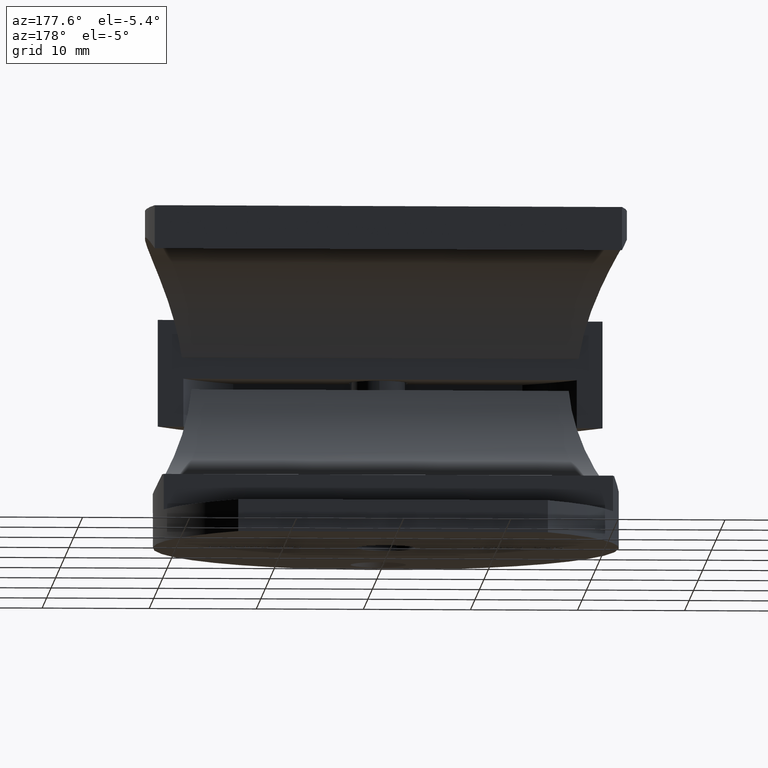
[diagram: clean part render]
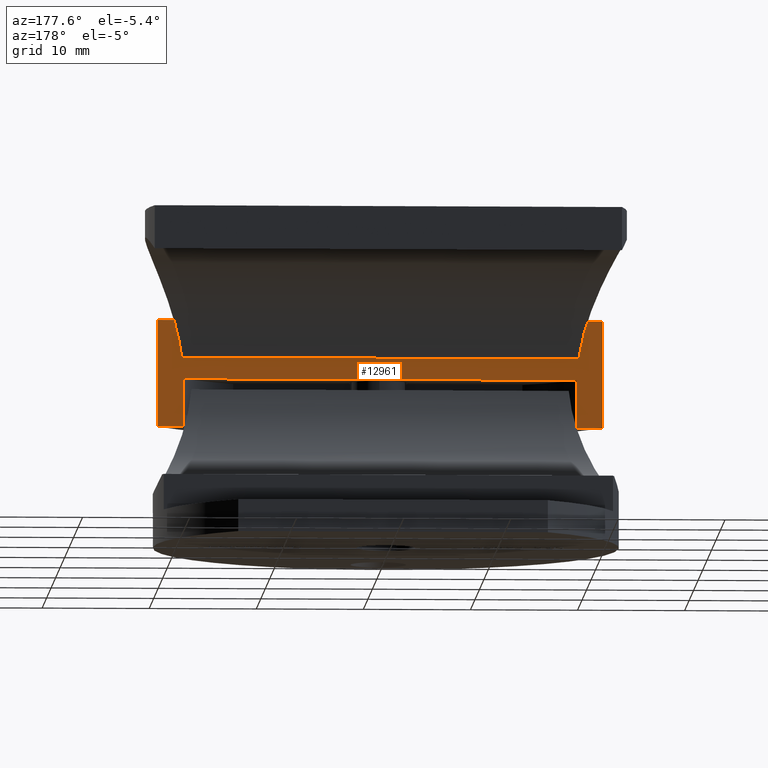
[diagram: same view with one face highlighted and labeled with its STEP entity id]
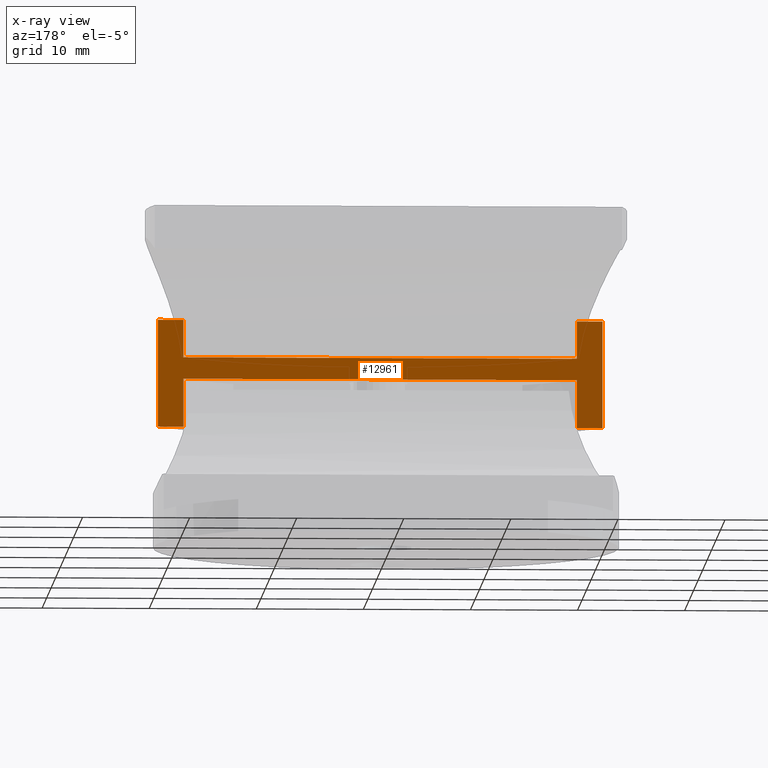
[diagram: x-ray of the same camera — body ghosted, the highlighted face saturated]
A machine part, auxiliary view. The second image highlights one B-rep face of the part: STEP entity #12961.
The next image is the same camera in x-ray: the body ghosted, the highlighted face saturated — about 0% of this face is hidden behind the body in this view.
In plain terms, the highlighted planar face has unit normal (-0, -1, -0).
Its self-contained STEP definition (entity closure, byte-faithful):
#287 = VERTEX_POINT ( 'NONE', #13875 ) ;
#369 = CARTESIAN_POINT ( 'NONE',  ( 20.76655965729521100, -13.00000000000000200, -5.000000000000000000 ) ) ;
#383 = CARTESIAN_POINT ( 'NONE',  ( 18.36436767220698500, -13.00000000000000200, -1.500000000000000900 ) ) ;
#545 = EDGE_CURVE ( 'NONE', #13800, #1394, #12990, .T. ) ;
#670 = ORIENTED_EDGE ( 'NONE', *, *, #13498, .F. ) ;
#902 = CARTESIAN_POINT ( 'NONE',  ( -18.36436767220698500, -13.00000000000000200, -1.500000000000000900 ) ) ;
#1107 = DIRECTION ( 'NONE',  ( 1.000000000000000000, 0.0000000000000000000, 0.0000000000000000000 ) ) ;
#1178 = CARTESIAN_POINT ( 'NONE',  ( 18.36436767220698100, -13.00000000000001100, 0.5000000000000004400 ) ) ;
#1394 = VERTEX_POINT ( 'NONE', #12115 ) ;
#1639 = VECTOR ( 'NONE', #5487, 1000.000000000000000 ) ;
#1865 = VECTOR ( 'NONE', #13068, 1000.000000000000000 ) ;
#1873 = CARTESIAN_POINT ( 'NONE',  ( 18.36436767220698500, -13.00000000000000200, -1.500000000000000900 ) ) ;
#1919 = VECTOR ( 'NONE', #11316, 1000.000000000000000 ) ;
#1970 = VERTEX_POINT ( 'NONE', #11370 ) ;
#2259 = CARTESIAN_POINT ( 'NONE',  ( -20.76655965729521100, -13.00000000000000200, -5.000000000000000000 ) ) ;
#2331 = ORIENTED_EDGE ( 'NONE', *, *, #9835, .F. ) ;
#2431 = CARTESIAN_POINT ( 'NONE',  ( -20.76655965729521100, -13.00000000000000200, -5.000000000000000000 ) ) ;
#2453 = CARTESIAN_POINT ( 'NONE',  ( 18.36436767220698100, -13.00000000000001100, 0.5000000000000004400 ) ) ;
#3137 = EDGE_CURVE ( 'NONE', #14924, #1394, #11073, .T. ) ;
#3250 = CARTESIAN_POINT ( 'NONE',  ( -20.76655965729521100, -13.00000000000000200, -5.000000000000000000 ) ) ;
#3344 = FACE_OUTER_BOUND ( 'NONE', #8490, .T. ) ;
#3437 = DIRECTION ( 'NONE',  ( 0.0000000000000000000, -1.000000000000000000, 0.0000000000000000000 ) ) ;
#3503 = CARTESIAN_POINT ( 'NONE',  ( -20.76655965729521100, -13.00000000000000200, 5.000000000000000000 ) ) ;
#3528 = ORIENTED_EDGE ( 'NONE', *, *, #7488, .F. ) ;
#3564 = CARTESIAN_POINT ( 'NONE',  ( -18.36436767220699200, -13.00000000000000200, 5.000000000000000000 ) ) ;
#4150 = VERTEX_POINT ( 'NONE', #12322 ) ;
#4159 = CARTESIAN_POINT ( 'NONE',  ( -20.76655965729521100, -13.00000000000000200, -5.000000000000000000 ) ) ;
#4200 = EDGE_CURVE ( 'NONE', #4473, #287, #5156, .T. ) ;
#4217 = LINE ( 'NONE', #1178, #10331 ) ;
#4274 = ORIENTED_EDGE ( 'NONE', *, *, #11919, .T. ) ;
#4473 = VERTEX_POINT ( 'NONE', #1873 ) ;
#4539 = DIRECTION ( 'NONE',  ( 1.000000000000000000, 0.0000000000000000000, 0.0000000000000000000 ) ) ;
#4619 = CARTESIAN_POINT ( 'NONE',  ( 18.36436767220698100, -13.00000000000001100, 5.000000000000000000 ) ) ;
#4771 = EDGE_CURVE ( 'NONE', #1970, #12312, #4217, .T. ) ;
#4917 = DIRECTION ( 'NONE',  ( -1.000000000000000000, 4.250762008925459600E-016, 0.0000000000000000000 ) ) ;
#4940 = DIRECTION ( 'NONE',  ( -0.0000000000000000000, -0.0000000000000000000, 1.000000000000000000 ) ) ;
#5124 = AXIS2_PLACEMENT_3D ( 'NONE', #2259, #3437, #7176 ) ;
#5156 = LINE ( 'NONE', #383, #1919 ) ;
#5439 = ORIENTED_EDGE ( 'NONE', *, *, #10551, .F. ) ;
#5487 = DIRECTION ( 'NONE',  ( -0.0000000000000000000, -0.0000000000000000000, 1.000000000000000000 ) ) ;
#5703 = DIRECTION ( 'NONE',  ( 1.000000000000000000, 0.0000000000000000000, 0.0000000000000000000 ) ) ;
#5890 = PLANE ( 'NONE',  #5124 ) ;
#6243 = DIRECTION ( 'NONE',  ( -0.0000000000000000000, -0.0000000000000000000, 1.000000000000000000 ) ) ;
#6421 = LINE ( 'NONE', #7069, #13856 ) ;
#6679 = VECTOR ( 'NONE', #9016, 1000.000000000000000 ) ;
#7069 = CARTESIAN_POINT ( 'NONE',  ( -18.36436767220698500, -13.00000000000000200, -1.500000000000000900 ) ) ;
#7176 = DIRECTION ( 'NONE',  ( 0.0000000000000000000, -0.0000000000000000000, -1.000000000000000000 ) ) ;
#7336 = LINE ( 'NONE', #9612, #10760 ) ;
#7361 = LINE ( 'NONE', #4159, #1639 ) ;
#7484 = VERTEX_POINT ( 'NONE', #3564 ) ;
#7488 = EDGE_CURVE ( 'NONE', #287, #14924, #11038, .T. ) ;
#7497 = VERTEX_POINT ( 'NONE', #3503 ) ;
#7500 = LINE ( 'NONE', #14687, #15461 ) ;
#7738 = DIRECTION ( 'NONE',  ( -0.0000000000000000000, 6.123233995736766000E-017, -1.000000000000000000 ) ) ;
#8126 = LINE ( 'NONE', #3250, #12130 ) ;
#8277 = CARTESIAN_POINT ( 'NONE',  ( 20.76655965729521100, -13.00000000000000200, -5.000000000000000000 ) ) ;
#8437 = VECTOR ( 'NONE', #4539, 1000.000000000000000 ) ;
#8490 = EDGE_LOOP ( 'NONE', ( #12403, #8900, #11890, #11108, #3528, #15684, #2331, #10023, #5439, #4274, #13958, #670 ) ) ;
#8510 = EDGE_CURVE ( 'NONE', #7497, #7484, #9136, .T. ) ;
#8514 = VECTOR ( 'NONE', #6243, 1000.000000000000000 ) ;
#8900 = ORIENTED_EDGE ( 'NONE', *, *, #10656, .T. ) ;
#9016 = DIRECTION ( 'NONE',  ( -0.0000000000000000000, -0.0000000000000000000, 1.000000000000000000 ) ) ;
#9136 = LINE ( 'NONE', #13222, #1865 ) ;
#9612 = CARTESIAN_POINT ( 'NONE',  ( -18.36436767220699200, -12.99999999999999500, 0.5000000000000004400 ) ) ;
#9835 = EDGE_CURVE ( 'NONE', #13820, #4473, #6421, .T. ) ;
#10023 = ORIENTED_EDGE ( 'NONE', *, *, #14064, .T. ) ;
#10331 = VECTOR ( 'NONE', #4917, 1000.000000000000000 ) ;
#10551 = EDGE_CURVE ( 'NONE', #12851, #4150, #8126, .T. ) ;
#10594 = CARTESIAN_POINT ( 'NONE',  ( -20.76655965729521100, -13.00000000000000200, -5.000000000000000000 ) ) ;
#10656 = EDGE_CURVE ( 'NONE', #1970, #13800, #15165, .T. ) ;
#10760 = VECTOR ( 'NONE', #4940, 1000.000000000000000 ) ;
#11038 = LINE ( 'NONE', #2431, #13892 ) ;
#11071 = CARTESIAN_POINT ( 'NONE',  ( -18.36436767220699200, -12.99999999999999500, 0.5000000000000004400 ) ) ;
#11073 = LINE ( 'NONE', #369, #6679 ) ;
#11108 = ORIENTED_EDGE ( 'NONE', *, *, #3137, .F. ) ;
#11316 = DIRECTION ( 'NONE',  ( -0.0000000000000000000, 6.123233995736766000E-017, -1.000000000000000000 ) ) ;
#11370 = CARTESIAN_POINT ( 'NONE',  ( 18.36436767220698100, -13.00000000000001100, 0.5000000000000004400 ) ) ;
#11890 = ORIENTED_EDGE ( 'NONE', *, *, #545, .T. ) ;
#11919 = EDGE_CURVE ( 'NONE', #12851, #7497, #7361, .T. ) ;
#12025 = DIRECTION ( 'NONE',  ( 1.000000000000000000, 0.0000000000000000000, 0.0000000000000000000 ) ) ;
#12115 = CARTESIAN_POINT ( 'NONE',  ( 20.76655965729521100, -13.00000000000000200, 5.000000000000000000 ) ) ;
#12130 = VECTOR ( 'NONE', #5703, 1000.000000000000000 ) ;
#12312 = VERTEX_POINT ( 'NONE', #11071 ) ;
#12322 = CARTESIAN_POINT ( 'NONE',  ( -18.36436767220698500, -13.00000000000000200, -5.000000000000000900 ) ) ;
#12403 = ORIENTED_EDGE ( 'NONE', *, *, #4771, .F. ) ;
#12602 = CARTESIAN_POINT ( 'NONE',  ( -20.76655965729521100, -13.00000000000000200, 5.000000000000000000 ) ) ;
#12851 = VERTEX_POINT ( 'NONE', #10594 ) ;
#12961 = ADVANCED_FACE ( 'NONE', ( #3344 ), #5890, .F. ) ;
#12990 = LINE ( 'NONE', #12602, #8437 ) ;
#13068 = DIRECTION ( 'NONE',  ( 1.000000000000000000, 0.0000000000000000000, 0.0000000000000000000 ) ) ;
#13222 = CARTESIAN_POINT ( 'NONE',  ( -20.76655965729521100, -13.00000000000000200, 5.000000000000000000 ) ) ;
#13498 = EDGE_CURVE ( 'NONE', #12312, #7484, #7336, .T. ) ;
#13800 = VERTEX_POINT ( 'NONE', #4619 ) ;
#13820 = VERTEX_POINT ( 'NONE', #902 ) ;
#13856 = VECTOR ( 'NONE', #1107, 1000.000000000000000 ) ;
#13875 = CARTESIAN_POINT ( 'NONE',  ( 18.36436767220698800, -13.00000000000000200, -5.000000000000000000 ) ) ;
#13892 = VECTOR ( 'NONE', #12025, 1000.000000000000000 ) ;
#13958 = ORIENTED_EDGE ( 'NONE', *, *, #8510, .T. ) ;
#14064 = EDGE_CURVE ( 'NONE', #13820, #4150, #7500, .T. ) ;
#14687 = CARTESIAN_POINT ( 'NONE',  ( -18.36436767220698500, -13.00000000000000200, -1.500000000000000900 ) ) ;
#14924 = VERTEX_POINT ( 'NONE', #8277 ) ;
#15165 = LINE ( 'NONE', #2453, #8514 ) ;
#15461 = VECTOR ( 'NONE', #7738, 1000.000000000000000 ) ;
#15684 = ORIENTED_EDGE ( 'NONE', *, *, #4200, .F. ) ;